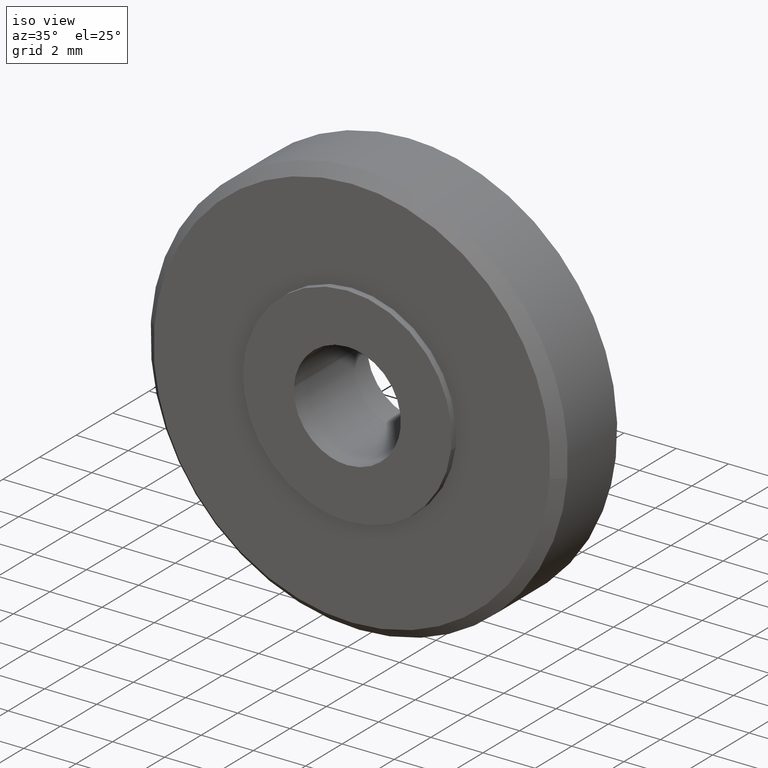
[diagram: clean part render]
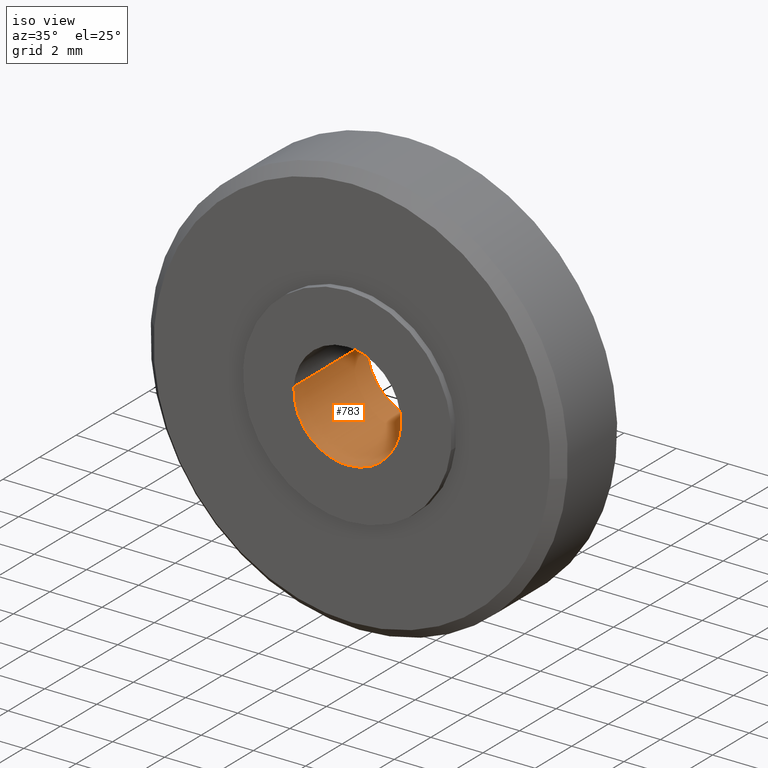
[diagram: same view with one face highlighted and labeled with its STEP entity id]
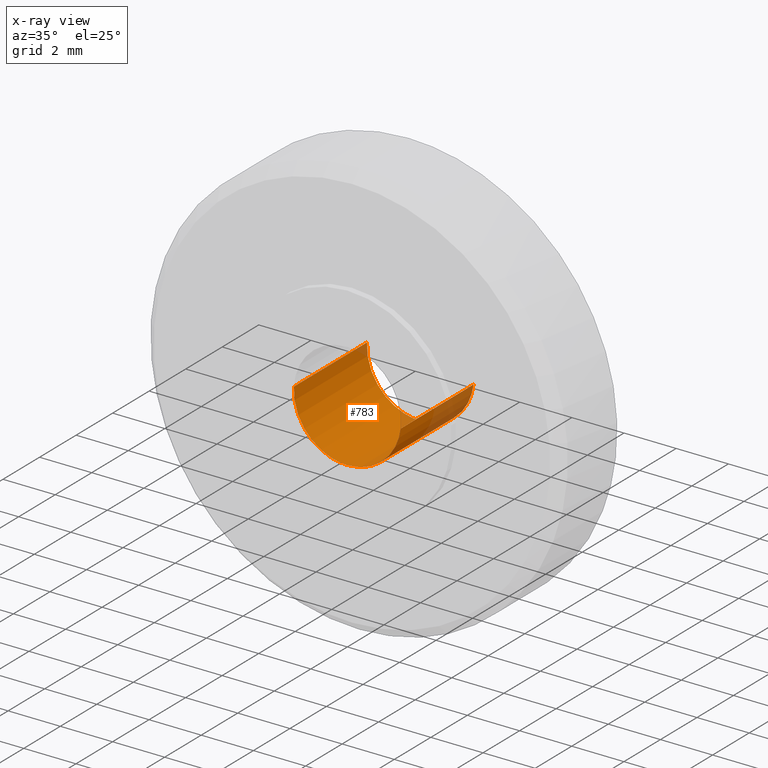
[diagram: x-ray of the same camera — body ghosted, the highlighted face saturated]
A machine part, iso view. The second image highlights one B-rep face of the part: STEP entity #783.
The next image is the same camera in x-ray: the body ghosted, the highlighted face saturated — about 10% of this face is hidden behind the body in this view.
In plain terms, the highlighted face is a freeform B-spline surface patch.
Its self-contained STEP definition (entity closure, byte-faithful):
#620=CARTESIAN_POINT('',(2.035669703009237,3.999999999999993,-0.241968717498998));
#621=VERTEX_POINT('',#620);
#639=CARTESIAN_POINT('',(2.035669700916635,-4.083389E-016,-0.241968735104062));
#640=VERTEX_POINT('',#639);
#641=CARTESIAN_POINT('',(2.035669703009237,3.999999999999993,-0.241968717498998));
#642=CARTESIAN_POINT('',(2.035669700916635,-4.083389E-016,-0.241968735104062));
#643=QUASI_UNIFORM_CURVE('',1,(#641,#642),.UNSPECIFIED.,.F.,.U.);
#644=EDGE_CURVE('',#621,#640,#643,.T.);
#663=CARTESIAN_POINT('',(-2.046176569416860,-6.184946E-016,0.125145702103279));
#664=VERTEX_POINT('',#663);
#678=CARTESIAN_POINT('',(-2.046176336764324,4.0,0.125149506054692));
#679=VERTEX_POINT('',#678);
#680=CARTESIAN_POINT('',(-2.046176336764324,4.0,0.125149506054692));
#681=CARTESIAN_POINT('',(-2.046176569416860,-6.184946E-016,0.125145702103279));
#682=QUASI_UNIFORM_CURVE('',1,(#680,#681),.UNSPECIFIED.,.F.,.U.);
#683=EDGE_CURVE('',#679,#664,#682,.T.);
#701=CARTESIAN_POINT('',(-2.046176336764827,4.100000000000000,0.125149506046457));
#702=CARTESIAN_POINT('',(-2.171325842811283,4.100000000000000,-1.921026830718371));
#703=CARTESIAN_POINT('',(-0.125149506046457,4.100000000000000,-2.046176336764827));
#704=CARTESIAN_POINT('',(1.807164156220976,4.100000000000000,-2.164361703301681));
#705=CARTESIAN_POINT('',(2.035669529045515,4.100000000000001,-0.241970181046355));
#706=CARTESIAN_POINT('',(-2.046176336764827,-0.102500000000000,0.125149506046457));
#707=CARTESIAN_POINT('',(-2.171325842811283,-0.102500000000000,-1.921026830718371));
#708=CARTESIAN_POINT('',(-0.125149506046457,-0.102500000000000,-2.046176336764827));
#709=CARTESIAN_POINT('',(1.807164156220976,-0.102500000000000,-2.164361703301681));
#710=CARTESIAN_POINT('',(2.035669529045515,-0.102500000000000,-0.241970181046355));
#718=(BOUNDED_SURFACE()B_SPLINE_SURFACE(2,1,((#701,#706),(#702,#707),(#703,#708),(#704,#709),(#705,#710)),.UNSPECIFIED.,.F.,.F.,.U.)B_SPLINE_SURFACE_WITH_KNOTS((3,2,3),(2,2),(0.0,3.396551211459378,6.657240374460381),(0.0,4.202500000000000),.UNSPECIFIED.)GEOMETRIC_REPRESENTATION_ITEM()RATIONAL_B_SPLINE_SURFACE(((1.0,1.0),(0.707106781186548,0.707106781186548),(1.0,1.0),(0.718822509939086,0.718822509939086),(0.977505800795127,0.977505800795127)))REPRESENTATION_ITEM('')SURFACE());
#719=CARTESIAN_POINT('',(0.0,4.0,-2.050000000000000));
#720=VERTEX_POINT('',#719);
#721=CARTESIAN_POINT('',(0.0,4.0,-2.050000000000000));
#722=CARTESIAN_POINT('',(1.820759096452078,4.000000000000001,-2.050000000000000));
#723=CARTESIAN_POINT('',(2.035669703009238,3.999999999999993,-0.241968717498998));
#731=(BOUNDED_CURVE()B_SPLINE_CURVE(2,(#721,#722,#723),.UNSPECIFIED.,.F.,.U.)B_SPLINE_CURVE_WITH_KNOTS((3,3),(0.0,0.229562595020764),.UNSPECIFIED.)CURVE()GEOMETRIC_REPRESENTATION_ITEM()RATIONAL_B_SPLINE_CURVE((1.0,0.731050690500798,0.956026992343031))REPRESENTATION_ITEM(''));
#732=EDGE_CURVE('',#720,#621,#731,.T.);
#733=ORIENTED_EDGE('',*,*,#732,.F.);
#734=CARTESIAN_POINT('',(-2.046176336764324,4.000000000000001,0.125149506054692));
#735=CARTESIAN_POINT('',(-2.050000000000000,4.0,0.062633164770366));
#736=CARTESIAN_POINT('',(-2.050000000000000,4.0,-1.224606E-016));
#737=CARTESIAN_POINT('',(-2.050000000000001,4.0,-2.050000000000001));
#738=CARTESIAN_POINT('',(0.0,4.0,-2.050000000000000));
#746=(BOUNDED_CURVE()B_SPLINE_CURVE(2,(#734,#735,#736,#737,#738),.UNSPECIFIED.,.F.,.U.)B_SPLINE_CURVE_WITH_KNOTS((3,2,3),(0.739332962240579,0.750000000000000,1.0),.UNSPECIFIED.)CURVE()GEOMETRIC_REPRESENTATION_ITEM()RATIONAL_B_SPLINE_CURVE((0.976072041670225,0.987502787901755,1.0,0.707106781186547,1.0))REPRESENTATION_ITEM(''));
#747=EDGE_CURVE('',#679,#720,#746,.T.);
#748=ORIENTED_EDGE('',*,*,#747,.F.);
#749=ORIENTED_EDGE('',*,*,#683,.T.);
#750=CARTESIAN_POINT('',(0.0,-3.765665E-016,-2.050000000000000));
#751=VERTEX_POINT('',#750);
#752=CARTESIAN_POINT('',(-2.046176569416861,-6.184946E-016,0.125145702103279));
#753=CARTESIAN_POINT('',(-2.050000000000001,-3.765665E-016,0.062631257457846));
#754=CARTESIAN_POINT('',(-2.050000000000000,-3.765665E-016,-1.224606E-016));
#755=CARTESIAN_POINT('',(-2.050000000000001,-3.765665E-016,-2.050000000000001));
#756=CARTESIAN_POINT('',(0.0,-3.765665E-016,-2.050000000000000));
#764=(BOUNDED_CURVE()B_SPLINE_CURVE(2,(#752,#753,#754,#755,#756),.UNSPECIFIED.,.F.,.U.)B_SPLINE_CURVE_WITH_KNOTS((3,2,3),(0.739333283015075,0.750000000000000,1.0),.UNSPECIFIED.)CURVE()GEOMETRIC_REPRESENTATION_ITEM()RATIONAL_B_SPLINE_CURVE((0.976072729151996,0.987503163712453,1.0,0.707106781186547,1.0))REPRESENTATION_ITEM(''));
#765=EDGE_CURVE('',#664,#751,#764,.T.);
#766=ORIENTED_EDGE('',*,*,#765,.T.);
#767=CARTESIAN_POINT('',(0.0,-3.765665E-016,-2.050000000000000));
#768=CARTESIAN_POINT('',(1.820759080594776,-3.765665E-016,-2.050000000000001));
#769=CARTESIAN_POINT('',(2.035669700916635,-4.083389E-016,-0.241968735104062));
#777=(BOUNDED_CURVE()B_SPLINE_CURVE(2,(#767,#768,#769),.UNSPECIFIED.,.F.,.U.)B_SPLINE_CURVE_WITH_KNOTS((3,3),(0.0,0.229562593559174),.UNSPECIFIED.)CURVE()GEOMETRIC_REPRESENTATION_ITEM()RATIONAL_B_SPLINE_CURVE((1.0,0.731050692213156,0.956026989478253))REPRESENTATION_ITEM(''));
#778=EDGE_CURVE('',#751,#640,#777,.T.);
#779=ORIENTED_EDGE('',*,*,#778,.T.);
#780=ORIENTED_EDGE('',*,*,#644,.F.);
#781=EDGE_LOOP('',(#733,#748,#749,#766,#779,#780));
#782=FACE_OUTER_BOUND('',#781,.T.);
#783=ADVANCED_FACE('',(#782),#718,.F.);